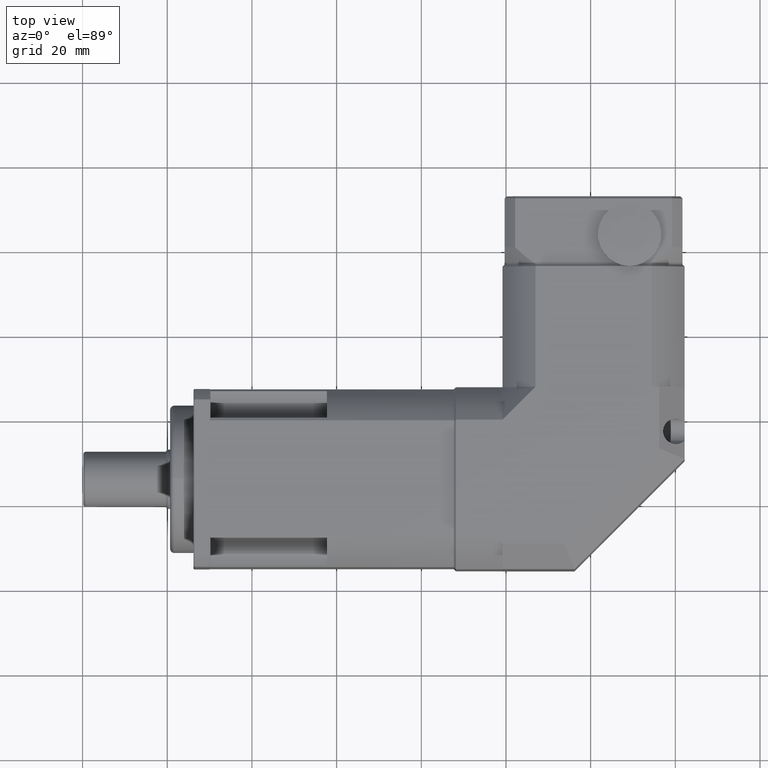
[diagram: clean part render]
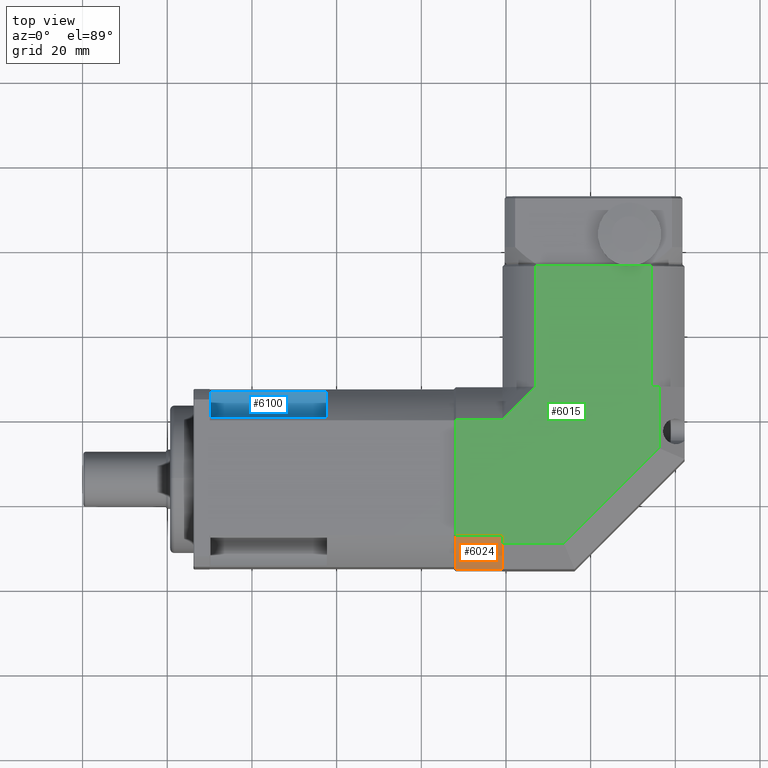
[diagram: same view with three faces highlighted in distinct colors, each labeled with its STEP entity id]
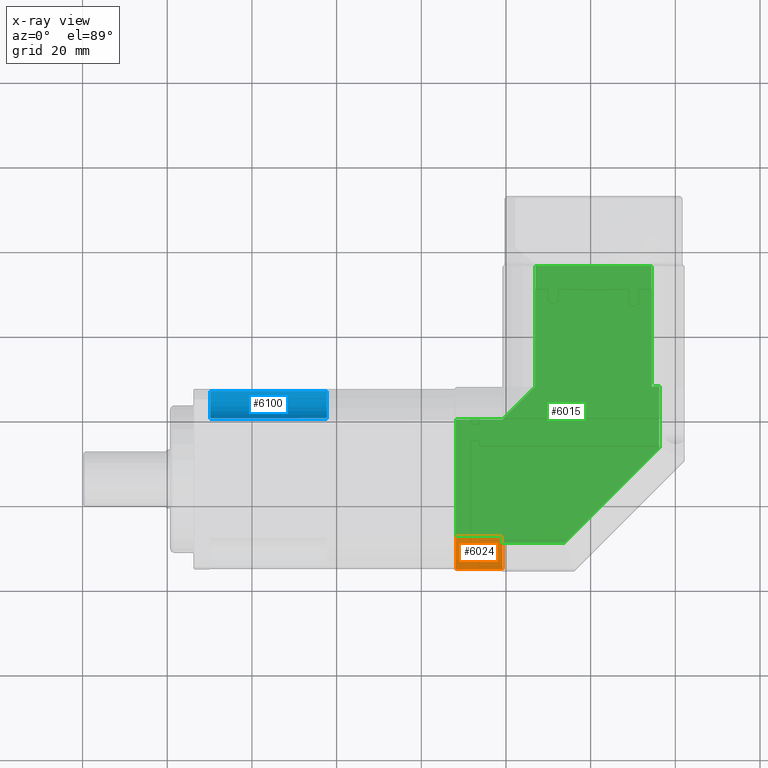
[diagram: x-ray of the same camera — body ghosted, the three highlighted faces saturated]
A machine part, top view with three faces highlighted in distinct colors.
The next image is the same camera in x-ray (body ghosted, the three faces saturated) — at least one of them is partly hidden behind the body in this view.
Their STEP definitions:

[orange] entity #6024 — the highlighted cylindrical surface (partial cylindrical patch) has radius 25.5 mm, axis along (1, -0, 0).
#287=LINE('',#9729,#598);
#300=LINE('',#9810,#611);
#598=VECTOR('',#7765,11.);
#611=VECTOR('',#7812,11.);
#1118=CYLINDRICAL_SURFACE('',#6599,25.5);
#1365=FACE_OUTER_BOUND('',#1858,.T.);
#1858=EDGE_LOOP('',(#4475,#4476,#4477,#4478));
#2316=CIRCLE('',#6595,25.5);
#2319=CIRCLE('',#6600,25.5);
#2735=VERTEX_POINT('',#9726);
#2736=VERTEX_POINT('',#9728);
#2750=VERTEX_POINT('',#9775);
#2755=VERTEX_POINT('',#9809);
#3363=EDGE_CURVE('',#2735,#2736,#287,.T.);
#3389=EDGE_CURVE('',#2750,#2735,#2316,.T.);
#3392=EDGE_CURVE('',#2755,#2750,#300,.T.);
#3393=EDGE_CURVE('',#2755,#2736,#2319,.T.);
#4475=ORIENTED_EDGE('',*,*,#3389,.F.);
#4476=ORIENTED_EDGE('',*,*,#3392,.F.);
#4477=ORIENTED_EDGE('',*,*,#3393,.T.);
#4478=ORIENTED_EDGE('',*,*,#3363,.F.);
#6024=ADVANCED_FACE('',(#1365),#1118,.T.);
#6595=AXIS2_PLACEMENT_3D('',#9804,#7802,#7803);
#6599=AXIS2_PLACEMENT_3D('',#9808,#7810,#7811);
#6600=AXIS2_PLACEMENT_3D('',#9811,#7813,#7814);
#7765=DIRECTION('',(1.,-6.8583429971216E-16,2.26009384343242E-16));
#7802=DIRECTION('center_axis',(-1.,6.8583429971216E-16,-2.26009384343242E-16));
#7803=DIRECTION('ref_axis',(-2.26009384343243E-16,-1.73236042467806E-15,
1.));
#7810=DIRECTION('center_axis',(1.,-6.8583429971216E-16,2.26009384343242E-16));
#7811=DIRECTION('ref_axis',(-2.26009384343243E-16,-1.73236042467806E-15,
1.));
#7812=DIRECTION('',(-1.,6.8583429971216E-16,-2.26009384343242E-16));
#7813=DIRECTION('center_axis',(-1.,6.8583429971216E-16,-2.26009384343242E-16));
#7814=DIRECTION('ref_axis',(-2.26009384343243E-16,-1.73236042467806E-15,
1.));
#9726=CARTESIAN_POINT('',(28.1917864952593,-7.65863073571157,16.9286399548234));
#9728=CARTESIAN_POINT('',(39.1917864952593,-7.65863073571158,16.9286399548234));
#9729=CARTESIAN_POINT('',(27.6917864952593,-7.65863073571157,16.9286399548234));
#9775=CARTESIAN_POINT('',(28.1917864952593,-15.4473215349095,9.13994915562546));
#9804=CARTESIAN_POINT('Origin',(28.1917864952593,6.05267846509057,-4.5713600451766));
#9808=CARTESIAN_POINT('Origin',(27.6917864952593,6.05267846509057,-4.5713600451766));
#9809=CARTESIAN_POINT('',(39.1917864952593,-15.4473215349095,9.13994915562546));
#9810=CARTESIAN_POINT('',(27.6917864952593,-15.4473215349095,9.13994915562546));
#9811=CARTESIAN_POINT('Origin',(39.1917864952593,6.05267846509056,-4.5713600451766));

[blue] entity #6100 — the highlighted cylindrical surface (edge-blend (fillet) strip) has radius 5 mm, axis along (-1, -0, 0).
#364=LINE('',#10220,#675);
#365=LINE('',#10221,#676);
#675=VECTOR('',#8174,27.5);
#676=VECTOR('',#8175,27.5);
#1136=CYLINDRICAL_SURFACE('',#6748,5.);
#1441=FACE_OUTER_BOUND('',#1964,.T.);
#1964=EDGE_LOOP('',(#4777,#4778,#4779,#4780));
#2337=CIRCLE('',#6655,5.);
#2367=CIRCLE('',#6716,5.);
#2784=VERTEX_POINT('',#9956);
#2785=VERTEX_POINT('',#9957);
#2834=VERTEX_POINT('',#10114);
#2835=VERTEX_POINT('',#10116);
#3445=EDGE_CURVE('',#2784,#2785,#2337,.T.);
#3507=EDGE_CURVE('',#2835,#2834,#2367,.T.);
#3547=EDGE_CURVE('',#2785,#2834,#364,.T.);
#3548=EDGE_CURVE('',#2835,#2784,#365,.T.);
#4777=ORIENTED_EDGE('',*,*,#3547,.F.);
#4778=ORIENTED_EDGE('',*,*,#3445,.F.);
#4779=ORIENTED_EDGE('',*,*,#3548,.F.);
#4780=ORIENTED_EDGE('',*,*,#3507,.T.);
#6100=ADVANCED_FACE('',(#1441),#1136,.F.);
#6655=AXIS2_PLACEMENT_3D('',#9958,#7953,#7954);
#6716=AXIS2_PLACEMENT_3D('',#10117,#8091,#8092);
#6748=AXIS2_PLACEMENT_3D('',#10219,#8172,#8173);
#7953=DIRECTION('center_axis',(-1.,-3.3874418421801E-16,1.95737501449167E-17));
#7954=DIRECTION('ref_axis',(-3.3874418421801E-16,1.,1.53628130655891E-15));
#8091=DIRECTION('center_axis',(-1.,-3.3874418421801E-16,1.95737501449167E-17));
#8092=DIRECTION('ref_axis',(-3.3874418421801E-16,1.,1.53628130655891E-15));
#8172=DIRECTION('center_axis',(-1.,-3.3874418421801E-16,1.95737501449167E-17));
#8173=DIRECTION('ref_axis',(-3.3874418421801E-16,1.,1.53628130655891E-15));
#8174=DIRECTION('',(-1.,-3.3874418421801E-16,1.95737501449167E-17));
#8175=DIRECTION('',(1.,3.3874418421801E-16,-1.95737501449167E-17));
#9956=CARTESIAN_POINT('',(-2.3082135047404,26.6289900550223,9.6277737789002));
#9957=CARTESIAN_POINT('',(-2.30821350474039,20.2518122891673,16.0049515447552));
#9958=CARTESIAN_POINT('Origin',(-2.30821350474039,24.9677848618307,14.3437463515636));
#10114=CARTESIAN_POINT('',(-29.8082135047404,20.2518122891673,16.0049515447552));
#10116=CARTESIAN_POINT('',(-29.8082135047404,26.6289900550223,9.6277737789002));
#10117=CARTESIAN_POINT('Origin',(-29.8082135047404,24.9677848618307,14.3437463515636));
#10219=CARTESIAN_POINT('Origin',(-2.30821350474039,24.9677848618307,14.3437463515636));
#10220=CARTESIAN_POINT('',(-2.30821350474039,20.2518122891673,16.0049515447552));
#10221=CARTESIAN_POINT('',(-2.3082135047404,26.6289900550223,9.6277737789002));

[green] entity #6015 — the highlighted planar face has unit normal (-0, -0, 1).
#262=LINE('',#9612,#573);
#268=LINE('',#9644,#579);
#282=LINE('',#9717,#593);
#283=LINE('',#9721,#594);
#284=LINE('',#9723,#595);
#285=LINE('',#9725,#596);
#286=LINE('',#9727,#597);
#287=LINE('',#9729,#598);
#288=LINE('',#9731,#599);
#289=LINE('',#9733,#600);
#290=LINE('',#9735,#601);
#291=LINE('',#9737,#602);
#292=LINE('',#9738,#603);
#573=VECTOR('',#7686,5.21130920089599);
#579=VECTOR('',#7708,22.2113092008907);
#593=VECTOR('',#7756,28.5);
#594=VECTOR('',#7761,28.5);
#595=VECTOR('',#7762,11.014872161302);
#596=VECTOR('',#7763,11.);
#597=VECTOR('',#7764,27.4226184016042);
#598=VECTOR('',#7765,11.);
#599=VECTOR('',#7766,1.7886907991979);
#600=VECTOR('',#7767,14.5147186257614);
#601=VECTOR('',#7768,31.7989898732233);
#602=VECTOR('',#7769,14.5147186257614);
#603=VECTOR('',#7770,1.78869079909209);
#1356=FACE_OUTER_BOUND('',#1849,.T.);
#1849=EDGE_LOOP('',(#4430,#4431,#4432,#4433,#4434,#4435,#4436,#4437,#4438,
#4439,#4440,#4441,#4442));
#2696=VERTEX_POINT('',#9588);
#2703=VERTEX_POINT('',#9611);
#2713=VERTEX_POINT('',#9639);
#2731=VERTEX_POINT('',#9716);
#2732=VERTEX_POINT('',#9720);
#2733=VERTEX_POINT('',#9722);
#2734=VERTEX_POINT('',#9724);
#2735=VERTEX_POINT('',#9726);
#2736=VERTEX_POINT('',#9728);
#2737=VERTEX_POINT('',#9730);
#2738=VERTEX_POINT('',#9732);
#2739=VERTEX_POINT('',#9734);
#2740=VERTEX_POINT('',#9736);
#3317=EDGE_CURVE('',#2696,#2703,#262,.T.);
#3330=EDGE_CURVE('',#2713,#2696,#268,.T.);
#3357=EDGE_CURVE('',#2731,#2703,#282,.T.);
#3359=EDGE_CURVE('',#2713,#2732,#283,.T.);
#3360=EDGE_CURVE('',#2732,#2733,#284,.T.);
#3361=EDGE_CURVE('',#2733,#2734,#285,.T.);
#3362=EDGE_CURVE('',#2735,#2734,#286,.T.);
#3363=EDGE_CURVE('',#2735,#2736,#287,.T.);
#3364=EDGE_CURVE('',#2736,#2737,#288,.T.);
#3365=EDGE_CURVE('',#2738,#2737,#289,.T.);
#3366=EDGE_CURVE('',#2739,#2738,#290,.T.);
#3367=EDGE_CURVE('',#2740,#2739,#291,.T.);
#3368=EDGE_CURVE('',#2740,#2731,#292,.T.);
#4430=ORIENTED_EDGE('',*,*,#3330,.F.);
#4431=ORIENTED_EDGE('',*,*,#3359,.T.);
#4432=ORIENTED_EDGE('',*,*,#3360,.T.);
#4433=ORIENTED_EDGE('',*,*,#3361,.T.);
#4434=ORIENTED_EDGE('',*,*,#3362,.F.);
#4435=ORIENTED_EDGE('',*,*,#3363,.T.);
#4436=ORIENTED_EDGE('',*,*,#3364,.T.);
#4437=ORIENTED_EDGE('',*,*,#3365,.F.);
#4438=ORIENTED_EDGE('',*,*,#3366,.F.);
#4439=ORIENTED_EDGE('',*,*,#3367,.F.);
#4440=ORIENTED_EDGE('',*,*,#3368,.T.);
#4441=ORIENTED_EDGE('',*,*,#3357,.T.);
#4442=ORIENTED_EDGE('',*,*,#3317,.F.);
#5440=PLANE('',#6582);
#6015=ADVANCED_FACE('',(#1356),#5440,.T.);
#6582=AXIS2_PLACEMENT_3D('',#9719,#7759,#7760);
#7686=DIRECTION('',(1.,-6.8583429971216E-16,2.26009384343242E-16));
#7708=DIRECTION('',(1.,-6.85834299712159E-16,2.26009384343242E-16));
#7756=DIRECTION('',(6.85834299712159E-16,1.,1.88549463497119E-15));
#7759=DIRECTION('center_axis',(-2.26009384343243E-16,-1.83563698510831E-15,
1.));
#7760=DIRECTION('ref_axis',(-7.105427357601E-16,-1.,-1.77635683940025E-15));
#7761=DIRECTION('',(-6.85834299712159E-16,-1.,-1.88549463497119E-15));
#7762=DIRECTION('',(-0.707106781183067,-0.707106781190029,-1.38477657203521E-15));
#7763=DIRECTION('',(-1.,6.8583429971216E-16,-2.26009384343242E-16));
#7764=DIRECTION('',(6.85834299712159E-16,1.,1.83563698510831E-15));
#7765=DIRECTION('',(1.,-6.8583429971216E-16,2.26009384343242E-16));
#7766=DIRECTION('',(-6.85834299712159E-16,-1.,-1.83563698510831E-15));
#7767=DIRECTION('',(-1.,6.8583429971216E-16,-2.26009384343242E-16));
#7768=DIRECTION('',(-0.707106781186548,-0.707106781186547,-1.45780412824782E-15));
#7769=DIRECTION('',(-6.85834299712159E-16,-1.,-1.83563698510831E-15));
#7770=DIRECTION('',(-1.,6.8583429971216E-16,-2.26009384343242E-16));
#9588=CARTESIAN_POINT('',(69.1917864952713,56.0526784650905,16.9286399548235));
#9611=CARTESIAN_POINT('',(74.4030956961672,56.0526784650905,16.9286399548235));
#9612=CARTESIAN_POINT('',(44.1917864952666,56.0526784650905,16.9286399548235));
#9639=CARTESIAN_POINT('',(46.9804772943805,56.0526784650905,16.9286399548235));
#9644=CARTESIAN_POINT('',(44.1917864952666,56.0526784650905,16.9286399548235));
#9716=CARTESIAN_POINT('',(74.4030956961672,27.5526784650905,16.9286399548234));
#9717=CARTESIAN_POINT('',(74.4030956961672,56.5526784650905,16.9286399548235));
#9719=CARTESIAN_POINT('Origin',(27.6917864952593,27.5526784650905,16.9286399548234));
#9720=CARTESIAN_POINT('',(46.9804772943805,27.5526784650905,16.9286399548234));
#9721=CARTESIAN_POINT('',(46.9804772943805,56.5526784650905,16.9286399548235));
#9722=CARTESIAN_POINT('',(39.1917864952593,19.7639876658926,16.9286399548234));
#9723=CARTESIAN_POINT('',(46.9804772943805,27.5526784650905,16.9286399548234));
#9724=CARTESIAN_POINT('',(28.1917864952593,19.7639876658926,16.9286399548234));
#9725=CARTESIAN_POINT('',(27.6917864952593,19.7639876658926,16.9286399548234));
#9726=CARTESIAN_POINT('',(28.1917864952593,-7.65863073571157,16.9286399548234));
#9727=CARTESIAN_POINT('',(28.1917864952593,16.8026784650905,16.9286399548234));
#9728=CARTESIAN_POINT('',(39.1917864952593,-7.65863073571158,16.9286399548234));
#9729=CARTESIAN_POINT('',(27.6917864952593,-7.65863073571157,16.9286399548234));
#9730=CARTESIAN_POINT('',(39.1917864952593,-9.44732153490948,16.9286399548234));
#9731=CARTESIAN_POINT('',(39.1917864952593,16.8026784650905,16.9286399548234));
#9732=CARTESIAN_POINT('',(53.7065051210207,-9.44732153490949,16.9286399548234));
#9733=CARTESIAN_POINT('',(27.6917864952593,-9.44732153490947,16.9286399548234));
#9734=CARTESIAN_POINT('',(76.1917864952593,13.0379598393291,16.9286399548234));
#9735=CARTESIAN_POINT('',(62.07414580814,-1.07968084779021,16.9286399548234));
#9736=CARTESIAN_POINT('',(76.1917864952593,27.5526784650905,16.9286399548234));
#9737=CARTESIAN_POINT('',(76.1917864952593,16.8026784650905,16.9286399548234));
#9738=CARTESIAN_POINT('',(44.1917864952666,27.5526784650905,16.9286399548234));